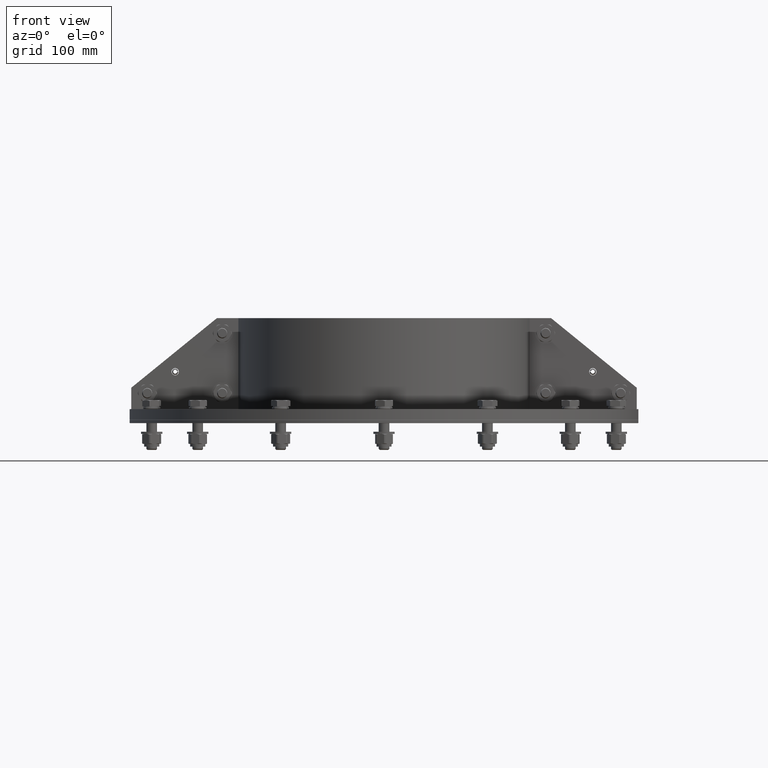
[diagram: clean part render]
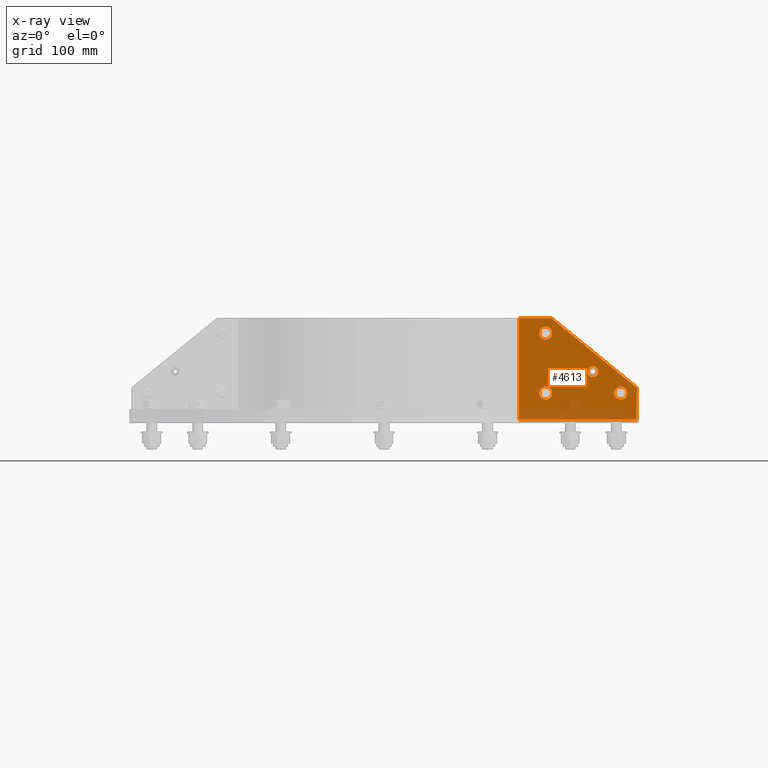
[diagram: x-ray — body ghosted, one internal face saturated and labeled with its STEP entity id]
A machine part, front view, then the same camera in x-ray: the body is ghosted and one INTERNAL B-rep face — a face not visible from any outside direction — is saturated and labeled: STEP entity #4613.
In plain terms, the highlighted planar face has unit normal (-0, 1, 0).
Its self-contained STEP definition (entity closure, byte-faithful):
#4327=CARTESIAN_POINT('',(-19.0,81.0,0.4));
#4328=VERTEX_POINT('',#4327);
#4329=CARTESIAN_POINT('',(-25.0,81.0,0.4));
#4330=DIRECTION('',(0.0,0.0,-1.0));
#4331=DIRECTION('',(-1.0,0.0,0.0));
#4332=AXIS2_PLACEMENT_3D('',#4329,#4330,#4331);
#4333=CIRCLE('',#4332,6.000000000000001);
#4334=EDGE_CURVE('',#4328,#4328,#4333,.T.);
#4355=CARTESIAN_POINT('',(-19.0,25.0,0.4));
#4356=VERTEX_POINT('',#4355);
#4357=CARTESIAN_POINT('',(-25.0,25.0,0.4));
#4358=DIRECTION('',(0.0,0.0,-1.0));
#4359=DIRECTION('',(-1.0,0.0,0.0));
#4360=AXIS2_PLACEMENT_3D('',#4357,#4358,#4359);
#4361=CIRCLE('',#4360,6.000000000000001);
#4362=EDGE_CURVE('',#4356,#4356,#4361,.T.);
#4383=CARTESIAN_POINT('',(-89.0,25.0,0.4));
#4384=VERTEX_POINT('',#4383);
#4385=CARTESIAN_POINT('',(-95.0,25.0,0.4));
#4386=DIRECTION('',(0.0,0.0,-1.0));
#4387=DIRECTION('',(-1.0,0.0,0.0));
#4388=AXIS2_PLACEMENT_3D('',#4385,#4386,#4387);
#4389=CIRCLE('',#4388,6.000000000000001);
#4390=EDGE_CURVE('',#4384,#4384,#4389,.T.);
#4411=CARTESIAN_POINT('',(-64.0,45.0,0.4));
#4412=VERTEX_POINT('',#4411);
#4413=CARTESIAN_POINT('',(-69.0,45.0,0.4));
#4414=DIRECTION('',(0.0,0.0,-1.0));
#4415=DIRECTION('',(-1.0,0.0,0.0));
#4416=AXIS2_PLACEMENT_3D('',#4413,#4414,#4415);
#4417=CIRCLE('',#4416,5.0);
#4418=EDGE_CURVE('',#4412,#4412,#4417,.T.);
#4439=CARTESIAN_POINT('',(-110.0,-1.347111E-014,0.4));
#4440=VERTEX_POINT('',#4439);
#4441=CARTESIAN_POINT('',(-110.0,29.999999999999986,0.4));
#4442=VERTEX_POINT('',#4441);
#4443=CARTESIAN_POINT('',(-110.0,-1.347111E-014,0.4));
#4444=DIRECTION('',(0.0,1.0,0.0));
#4445=VECTOR('',#4444,30.0);
#4446=LINE('',#4443,#4445);
#4447=EDGE_CURVE('',#4440,#4442,#4446,.T.);
#4479=CARTESIAN_POINT('',(-30.000000000000032,95.0,0.4));
#4480=VERTEX_POINT('',#4479);
#4481=CARTESIAN_POINT('',(-110.0,29.999999999999986,0.4));
#4482=DIRECTION('',(0.776114000116265,0.630592625094466,0.0));
#4483=VECTOR('',#4482,103.0776406404415);
#4484=LINE('',#4481,#4483);
#4485=EDGE_CURVE('',#4442,#4480,#4484,.T.);
#4510=CARTESIAN_POINT('',(-2.908536E-014,95.0,0.4));
#4511=VERTEX_POINT('',#4510);
#4512=CARTESIAN_POINT('',(-30.000000000000032,95.0,0.4));
#4513=DIRECTION('',(1.0,0.0,0.0));
#4514=VECTOR('',#4513,30.0);
#4515=LINE('',#4512,#4514);
#4516=EDGE_CURVE('',#4480,#4511,#4515,.T.);
#4541=CARTESIAN_POINT('',(0.0,0.0,0.4));
#4542=VERTEX_POINT('',#4541);
#4543=CARTESIAN_POINT('',(-2.908536E-014,95.0,0.4));
#4544=DIRECTION('',(0.0,-1.0,0.0));
#4545=VECTOR('',#4544,95.0);
#4546=LINE('',#4543,#4545);
#4547=EDGE_CURVE('',#4511,#4542,#4546,.T.);
#4572=CARTESIAN_POINT('',(0.0,0.0,0.4));
#4573=DIRECTION('',(-1.0,0.0,0.0));
#4574=VECTOR('',#4573,110.0);
#4575=LINE('',#4572,#4574);
#4576=EDGE_CURVE('',#4542,#4440,#4575,.T.);
#4589=CARTESIAN_POINT('',(-46.227841536977579,38.727841536977571,0.4));
#4590=DIRECTION('',(0.0,0.0,1.0));
#4591=DIRECTION('',(1.0,0.0,0.0));
#4592=AXIS2_PLACEMENT_3D('',#4589,#4590,#4591);
#4593=PLANE('',#4592);
#4594=ORIENTED_EDGE('',*,*,#4447,.F.);
#4595=ORIENTED_EDGE('',*,*,#4576,.F.);
#4596=ORIENTED_EDGE('',*,*,#4547,.F.);
#4597=ORIENTED_EDGE('',*,*,#4516,.F.);
#4598=ORIENTED_EDGE('',*,*,#4485,.F.);
#4599=EDGE_LOOP('',(#4594,#4595,#4596,#4597,#4598));
#4600=FACE_OUTER_BOUND('',#4599,.T.);
#4601=ORIENTED_EDGE('',*,*,#4334,.T.);
#4602=EDGE_LOOP('',(#4601));
#4603=FACE_BOUND('',#4602,.T.);
#4604=ORIENTED_EDGE('',*,*,#4362,.T.);
#4605=EDGE_LOOP('',(#4604));
#4606=FACE_BOUND('',#4605,.T.);
#4607=ORIENTED_EDGE('',*,*,#4390,.T.);
#4608=EDGE_LOOP('',(#4607));
#4609=FACE_BOUND('',#4608,.T.);
#4610=ORIENTED_EDGE('',*,*,#4418,.T.);
#4611=EDGE_LOOP('',(#4610));
#4612=FACE_BOUND('',#4611,.T.);
#4613=ADVANCED_FACE('',(#4600,#4603,#4606,#4609,#4612),#4593,.T.);